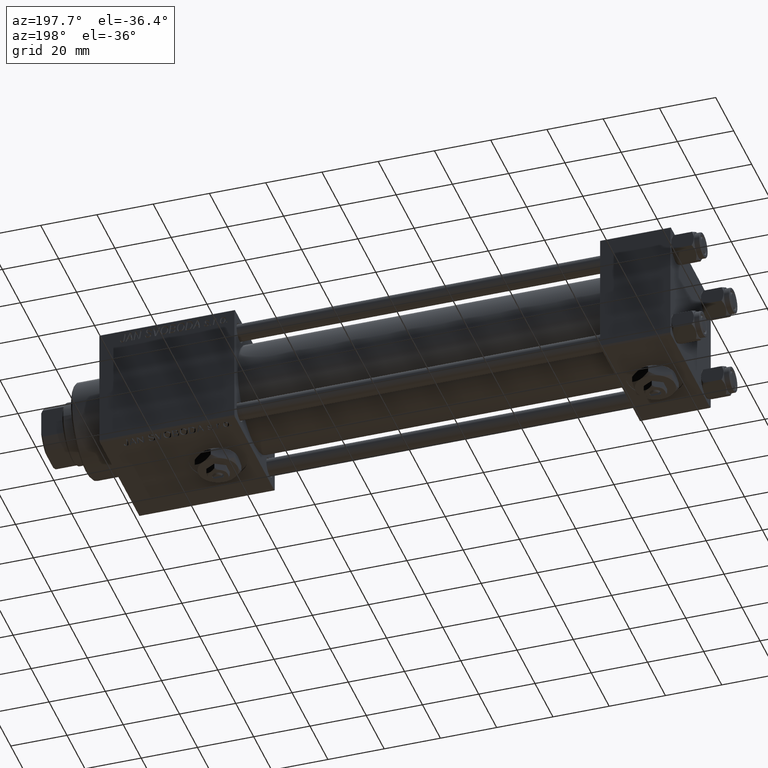
[diagram: clean part render]
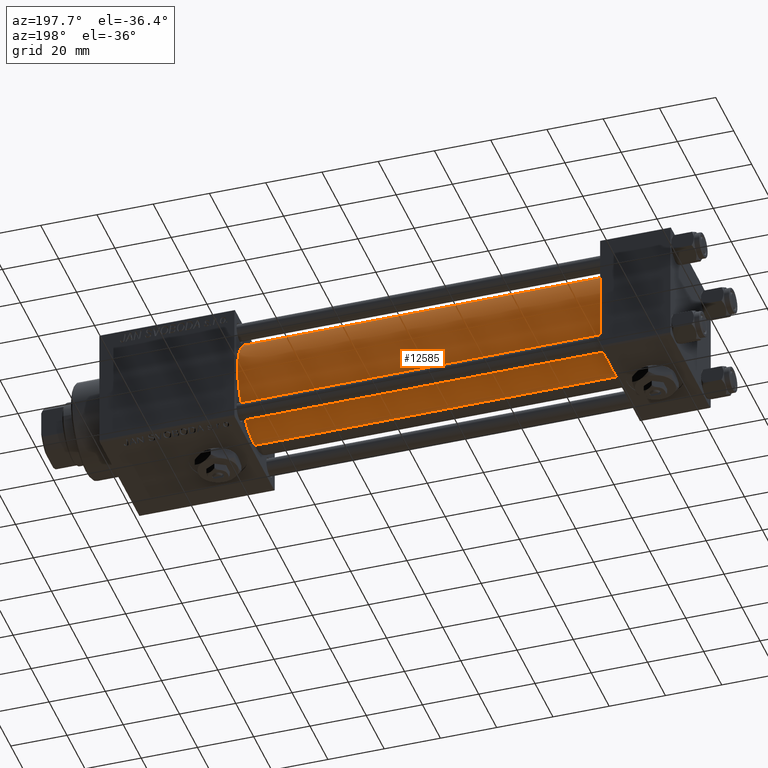
[diagram: same view with one face highlighted and labeled with its STEP entity id]
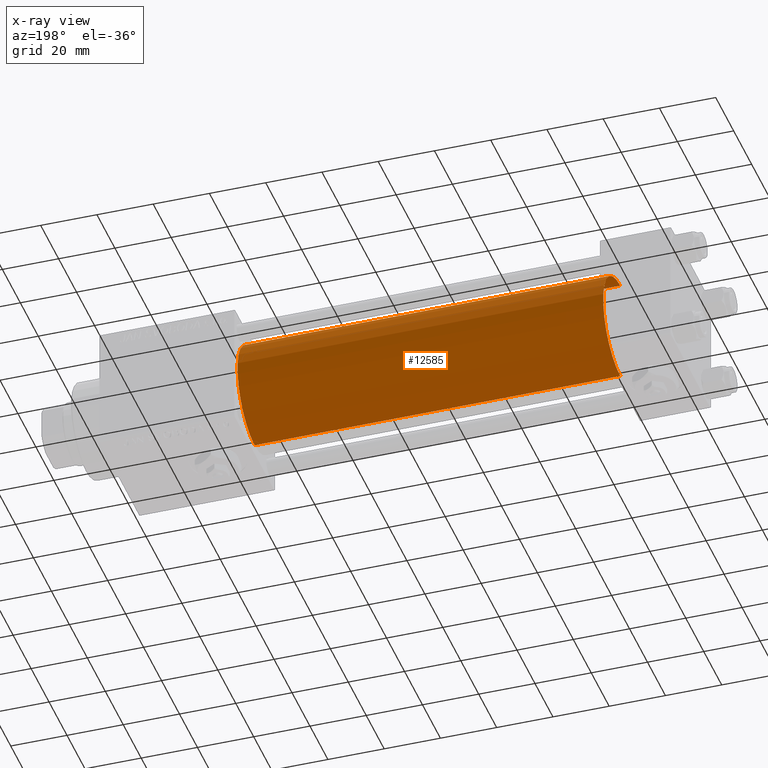
[diagram: x-ray of the same camera — body ghosted, the highlighted face saturated]
A machine part, auxiliary view. The second image highlights one B-rep face of the part: STEP entity #12585.
The next image is the same camera in x-ray: the body ghosted, the highlighted face saturated — about 0% of this face is hidden behind the body in this view.
In plain terms, the highlighted cylindrical surface (partial cylindrical patch) has radius 19 mm, axis along (-1, -0, -0).
Its self-contained STEP definition (entity closure, byte-faithful):
#1290 = CARTESIAN_POINT ( 'NONE',  ( 155.0000000000000000, -2.602085213965210642E-15, 19.00000000000000000 ) ) ;
#3991 = VERTEX_POINT ( 'NONE', #26249 ) ;
#6523 = VECTOR ( 'NONE', #9412, 1000.000000000000000 ) ;
#6558 = CIRCLE ( 'NONE', #47178, 19.00000000000000000 ) ;
#7216 = DIRECTION ( 'NONE',  ( 1.000000000000000000, 0.000000000000000000, 0.000000000000000000 ) ) ;
#7224 = DIRECTION ( 'NONE',  ( 1.000000000000000000, -0.000000000000000000, 0.000000000000000000 ) ) ;
#7760 = DIRECTION ( 'NONE',  ( 0.000000000000000000, 0.000000000000000000, -1.000000000000000000 ) ) ;
#8919 = CARTESIAN_POINT ( 'NONE',  ( 24.99999999999999289, -2.752562955852396712E-16, -19.00000000000000000 ) ) ;
#9412 = DIRECTION ( 'NONE',  ( -1.000000000000000000, -0.000000000000000000, -0.000000000000000000 ) ) ;
#11273 = DIRECTION ( 'NONE',  ( 0.000000000000000000, 0.000000000000000000, 1.000000000000000000 ) ) ;
#12585 = ADVANCED_FACE ( 'NONE', ( #46473 ), #17236, .T. ) ;
#13170 = CARTESIAN_POINT ( 'NONE',  ( 155.0000000000000000, -2.602085213965210642E-15, 0.000000000000000000 ) ) ;
#13779 = EDGE_CURVE ( 'NONE', #35817, #3991, #34057, .T. ) ;
#14724 = EDGE_CURVE ( 'NONE', #45139, #3991, #6558, .T. ) ;
#16694 = VECTOR ( 'NONE', #46124, 1000.000000000000000 ) ;
#17236 = CYLINDRICAL_SURFACE ( 'NONE', #46239, 19.00000000000000000 ) ;
#17956 = EDGE_CURVE ( 'NONE', #48634, #35817, #30784, .T. ) ;
#18662 = AXIS2_PLACEMENT_3D ( 'NONE', #44843, #7216, #7760 ) ;
#19579 = ORIENTED_EDGE ( 'NONE', *, *, #17956, .F. ) ;
#21618 = CARTESIAN_POINT ( 'NONE',  ( 155.0000000000000000, -2.752562955852396712E-16, -19.00000000000000000 ) ) ;
#22690 = CARTESIAN_POINT ( 'NONE',  ( 24.99999999999999289, -2.602085213965210642E-15, 0.000000000000000000 ) ) ;
#26249 = CARTESIAN_POINT ( 'NONE',  ( 24.99999999999999289, -2.602085213965210642E-15, 19.00000000000000000 ) ) ;
#26727 = DIRECTION ( 'NONE',  ( 0.000000000000000000, 0.000000000000000000, 1.000000000000000000 ) ) ;
#29367 = LINE ( 'NONE', #49128, #16694 ) ;
#30784 = CIRCLE ( 'NONE', #18662, 19.00000000000000000 ) ;
#32814 = EDGE_LOOP ( 'NONE', ( #19579, #45505, #47196, #45256 ) ) ;
#34057 = LINE ( 'NONE', #1290, #6523 ) ;
#35817 = VERTEX_POINT ( 'NONE', #39062 ) ;
#39062 = CARTESIAN_POINT ( 'NONE',  ( 155.0000000000000000, -2.602085213965210642E-15, 19.00000000000000000 ) ) ;
#40306 = EDGE_CURVE ( 'NONE', #48634, #45139, #29367, .T. ) ;
#44843 = CARTESIAN_POINT ( 'NONE',  ( 155.0000000000000000, -2.602085213965210642E-15, 0.000000000000000000 ) ) ;
#45139 = VERTEX_POINT ( 'NONE', #8919 ) ;
#45256 = ORIENTED_EDGE ( 'NONE', *, *, #13779, .F. ) ;
#45505 = ORIENTED_EDGE ( 'NONE', *, *, #40306, .T. ) ;
#46124 = DIRECTION ( 'NONE',  ( -1.000000000000000000, -0.000000000000000000, -0.000000000000000000 ) ) ;
#46239 = AXIS2_PLACEMENT_3D ( 'NONE', #13170, #47285, #26727 ) ;
#46473 = FACE_OUTER_BOUND ( 'NONE', #32814, .T. ) ;
#47178 = AXIS2_PLACEMENT_3D ( 'NONE', #22690, #7224, #11273 ) ;
#47196 = ORIENTED_EDGE ( 'NONE', *, *, #14724, .T. ) ;
#47285 = DIRECTION ( 'NONE',  ( -1.000000000000000000, -0.000000000000000000, -0.000000000000000000 ) ) ;
#48634 = VERTEX_POINT ( 'NONE', #21618 ) ;
#49128 = CARTESIAN_POINT ( 'NONE',  ( 155.0000000000000000, -2.752562955852396712E-16, -19.00000000000000000 ) ) ;